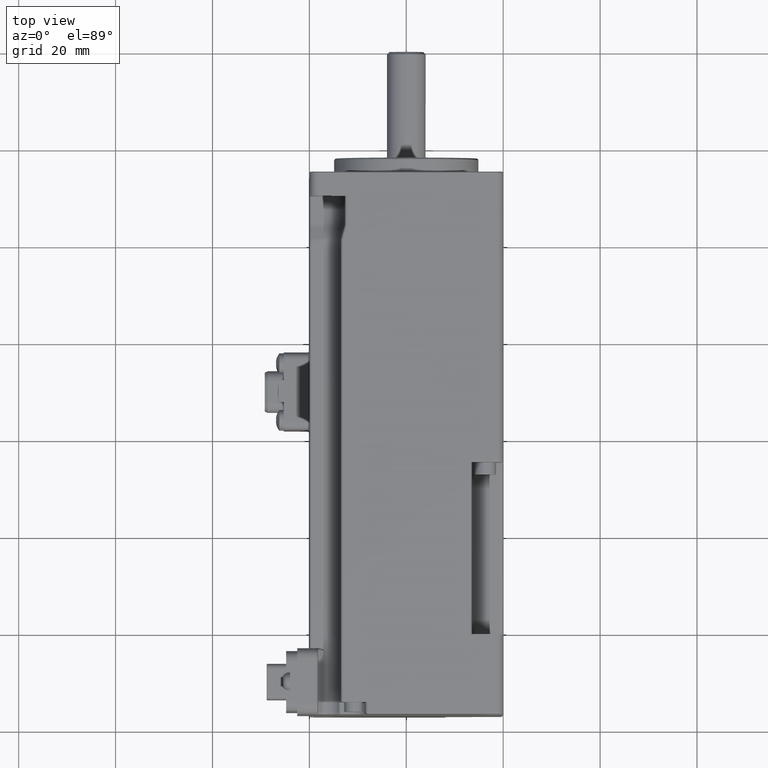
[diagram: clean part render]
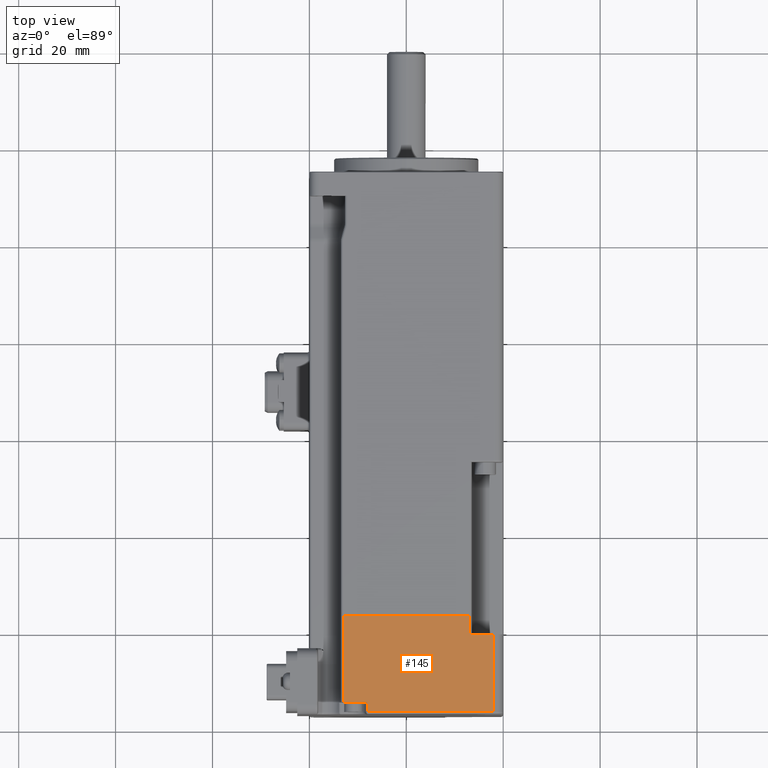
[diagram: same view with one face highlighted and labeled with its STEP entity id]
A machine part, top view. The second image highlights one B-rep face of the part: STEP entity #145.
In plain terms, the highlighted planar face has unit normal (0, 0, 1).
Its self-contained STEP definition (entity closure, byte-faithful):
#145 = ADVANCED_FACE ( 'NONE', ( #15669 ), #9902, .T. ) ;
#234 = VECTOR ( 'NONE', #17930, 1000.000000000000000 ) ;
#592 = CARTESIAN_POINT ( 'NONE',  ( -7.916336843204028639, -54.49999999999995026, 20.00000000000014566 ) ) ;
#745 = DIRECTION ( 'NONE',  ( 4.278510914554647799E-16, 1.000000000000000000, -1.941917958871679015E-15 ) ) ;
#914 = DIRECTION ( 'NONE',  ( -4.278510914554647799E-16, -1.000000000000000000, 1.941917958871679015E-15 ) ) ;
#1121 = CARTESIAN_POINT ( 'NONE',  ( 18.00000000000001421, -56.49999999999996447, 20.00000000000011369 ) ) ;
#1352 = EDGE_CURVE ( 'NONE', #1923, #12596, #19085, .T. ) ;
#1837 = CARTESIAN_POINT ( 'NONE',  ( 18.00000000000002132, -40.49999999999996447, 20.00000000000008527 ) ) ;
#1875 = VERTEX_POINT ( 'NONE', #21546 ) ;
#1907 = EDGE_LOOP ( 'NONE', ( #10861, #24640, #17813, #15918, #24656, #16785, #2685, #5189 ) ) ;
#1923 = VERTEX_POINT ( 'NONE', #592 ) ;
#2685 = ORIENTED_EDGE ( 'NONE', *, *, #18242, .T. ) ;
#3415 = DIRECTION ( 'NONE',  ( 1.000000000000000000, -4.278510914554668506E-16, -1.137978600240785257E-15 ) ) ;
#3522 = VECTOR ( 'NONE', #6427, 1000.000000000000000 ) ;
#3550 = AXIS2_PLACEMENT_3D ( 'NONE', #13786, #6143, #24718 ) ;
#5189 = ORIENTED_EDGE ( 'NONE', *, *, #24121, .T. ) ;
#5425 = LINE ( 'NONE', #9431, #9883 ) ;
#6143 = DIRECTION ( 'NONE',  ( 1.137978600240785257E-15, 1.941917958871678621E-15, 1.000000000000000000 ) ) ;
#6427 = DIRECTION ( 'NONE',  ( 1.000000000000000000, -4.278510914554668013E-16, -1.137978600240785257E-15 ) ) ;
#6623 = VECTOR ( 'NONE', #22992, 1000.000000000000000 ) ;
#6677 = LINE ( 'NONE', #8305, #3522 ) ;
#7068 = LINE ( 'NONE', #9196, #234 ) ;
#7968 = DIRECTION ( 'NONE',  ( 4.278510914554647799E-16, 1.000000000000000000, -1.941917958871679015E-15 ) ) ;
#8025 = CARTESIAN_POINT ( 'NONE',  ( -13.50345596729057895, -54.49999999999995026, 20.00000000000014921 ) ) ;
#8305 = CARTESIAN_POINT ( 'NONE',  ( 20.00000000000002132, -40.49999999999996447, 20.00000000000008171 ) ) ;
#8376 = VECTOR ( 'NONE', #21329, 1000.000000000000000 ) ;
#9031 = EDGE_CURVE ( 'NONE', #23361, #20909, #5425, .T. ) ;
#9196 = CARTESIAN_POINT ( 'NONE',  ( -13.00345596729057540, -37.09999999999995168, 20.00000000000011013 ) ) ;
#9431 = CARTESIAN_POINT ( 'NONE',  ( -13.00345596729057540, -36.59999999999995168, 20.00000000000011013 ) ) ;
#9883 = VECTOR ( 'NONE', #3415, 1000.000000000000000 ) ;
#9902 = PLANE ( 'NONE',  #3550 ) ;
#10294 = CARTESIAN_POINT ( 'NONE',  ( 13.00345596729064823, -37.09999999999996589, 20.00000000000008527 ) ) ;
#10543 = LINE ( 'NONE', #10294, #11371 ) ;
#10861 = ORIENTED_EDGE ( 'NONE', *, *, #20292, .F. ) ;
#11024 = CARTESIAN_POINT ( 'NONE',  ( -13.00345596729058073, -54.49999999999995026, 20.00000000000014921 ) ) ;
#11371 = VECTOR ( 'NONE', #745, 1000.000000000000000 ) ;
#11738 = VECTOR ( 'NONE', #914, 1000.000000000000000 ) ;
#11752 = VECTOR ( 'NONE', #7968, 1000.000000000000000 ) ;
#11829 = CARTESIAN_POINT ( 'NONE',  ( 18.00000000000001776, -56.49999999999996447, 20.00000000000011369 ) ) ;
#11956 = CARTESIAN_POINT ( 'NONE',  ( -7.916336843204030416, -56.99999999999995026, 20.00000000000014566 ) ) ;
#12596 = VERTEX_POINT ( 'NONE', #11024 ) ;
#13786 = CARTESIAN_POINT ( 'NONE',  ( 13.50691120034780113, -37.09999999999996589, 20.00000000000008171 ) ) ;
#15202 = VERTEX_POINT ( 'NONE', #1121 ) ;
#15303 = EDGE_CURVE ( 'NONE', #24224, #20909, #10543, .T. ) ;
#15345 = LINE ( 'NONE', #11829, #6623 ) ;
#15669 = FACE_OUTER_BOUND ( 'NONE', #1907, .T. ) ;
#15785 = VERTEX_POINT ( 'NONE', #16471 ) ;
#15918 = ORIENTED_EDGE ( 'NONE', *, *, #18822, .T. ) ;
#16471 = CARTESIAN_POINT ( 'NONE',  ( 18.00000000000002132, -40.49999999999996447, 20.00000000000008527 ) ) ;
#16785 = ORIENTED_EDGE ( 'NONE', *, *, #24612, .T. ) ;
#17350 = LINE ( 'NONE', #11956, #11738 ) ;
#17813 = ORIENTED_EDGE ( 'NONE', *, *, #9031, .F. ) ;
#17930 = DIRECTION ( 'NONE',  ( -4.278510914554647799E-16, -1.000000000000000000, 1.941917958871679015E-15 ) ) ;
#18242 = EDGE_CURVE ( 'NONE', #1875, #15202, #15345, .T. ) ;
#18713 = CARTESIAN_POINT ( 'NONE',  ( -13.00345596729057540, -36.59999999999995168, 20.00000000000011013 ) ) ;
#18822 = EDGE_CURVE ( 'NONE', #23361, #12596, #7068, .T. ) ;
#19085 = LINE ( 'NONE', #8025, #8376 ) ;
#20266 = CARTESIAN_POINT ( 'NONE',  ( 13.00345596729064823, -36.59999999999996589, 20.00000000000008171 ) ) ;
#20292 = EDGE_CURVE ( 'NONE', #24224, #15785, #6677, .T. ) ;
#20909 = VERTEX_POINT ( 'NONE', #20266 ) ;
#21329 = DIRECTION ( 'NONE',  ( -1.000000000000000000, 4.278510914554654701E-16, 4.559723669826649785E-16 ) ) ;
#21546 = CARTESIAN_POINT ( 'NONE',  ( -7.916336843204030416, -56.49999999999995026, 20.00000000000014211 ) ) ;
#21767 = CARTESIAN_POINT ( 'NONE',  ( 13.00345596729064646, -40.49999999999996447, 20.00000000000008882 ) ) ;
#22992 = DIRECTION ( 'NONE',  ( 1.000000000000000000, -4.278510914554668013E-16, -1.137978600240785257E-15 ) ) ;
#23024 = LINE ( 'NONE', #1837, #11752 ) ;
#23361 = VERTEX_POINT ( 'NONE', #18713 ) ;
#24121 = EDGE_CURVE ( 'NONE', #15202, #15785, #23024, .T. ) ;
#24224 = VERTEX_POINT ( 'NONE', #21767 ) ;
#24612 = EDGE_CURVE ( 'NONE', #1923, #1875, #17350, .T. ) ;
#24640 = ORIENTED_EDGE ( 'NONE', *, *, #15303, .T. ) ;
#24656 = ORIENTED_EDGE ( 'NONE', *, *, #1352, .F. ) ;
#24718 = DIRECTION ( 'NONE',  ( 4.278510914554647799E-16, 1.000000000000000000, -1.941917958871679015E-15 ) ) ;